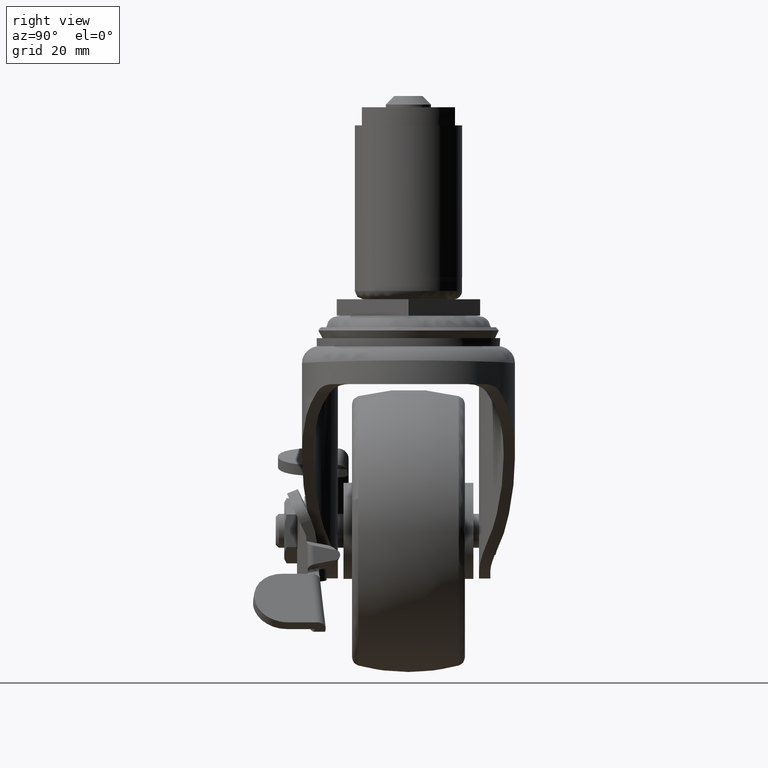
[diagram: clean part render]
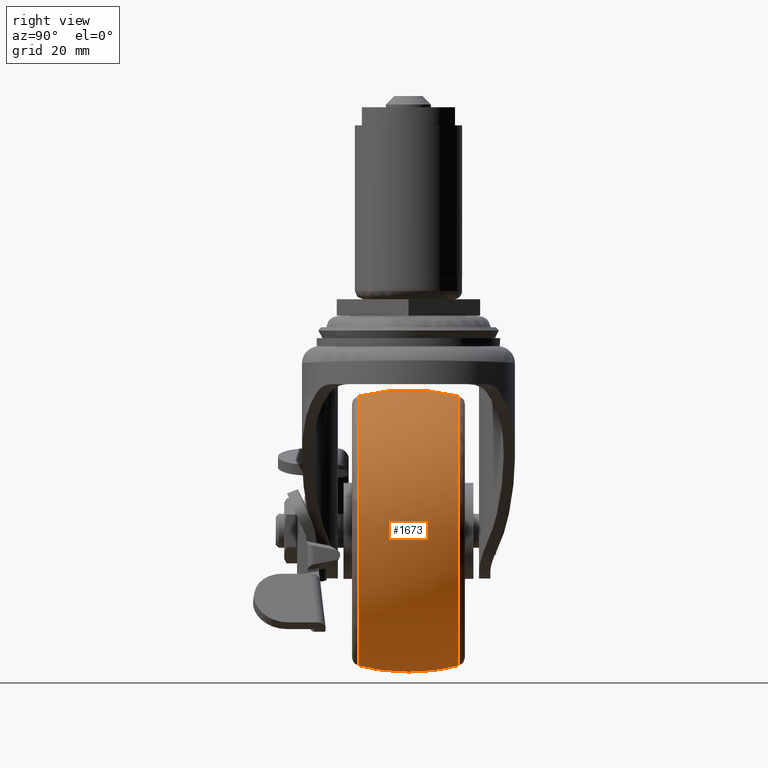
[diagram: same view with one face highlighted and labeled with its STEP entity id]
A machine part, right view. The second image highlights one B-rep face of the part: STEP entity #1673.
In plain terms, the highlighted face is a freeform B-spline surface patch.
Its self-contained STEP definition (entity closure, byte-faithful):
#922=CARTESIAN_POINT('',(-9.399585676374150,-8.880696015885199,-62.837882612725409));
#923=VERTEX_POINT('',#922);
#934=CARTESIAN_POINT('',(4.177901481494555,-8.880696018716346,-35.358828339124777));
#935=VERTEX_POINT('',#934);
#936=CARTESIAN_POINT('',(-9.399585676374150,-8.880696015885199,-62.837882612725409));
#937=CARTESIAN_POINT('',(-8.050520286802502,-8.880696015610686,-62.244985003119830));
#938=CARTESIAN_POINT('',(-6.147953179379456,-8.880696015280980,-61.188268957235877));
#939=CARTESIAN_POINT('',(-3.544275707571238,-8.880696014961051,-59.237053962578713));
#940=CARTESIAN_POINT('',(-1.740728234617294,-8.880696014829189,-57.540412233137388));
#941=CARTESIAN_POINT('',(0.225375365864537,-8.880696014806256,-55.226017047460147));
#942=CARTESIAN_POINT('',(1.777738449670840,-8.880696014926926,-52.864641916692612));
#943=CARTESIAN_POINT('',(3.112648493303074,-8.880696015225183,-50.086988651820512));
#944=CARTESIAN_POINT('',(4.008227709776355,-8.880696015612610,-47.502378921281213));
#945=CARTESIAN_POINT('',(4.688618792101023,-8.880696016201288,-44.407195671817128));
#946=CARTESIAN_POINT('',(5.004737862097834,-8.880696017160545,-40.331742447262378));
#947=CARTESIAN_POINT('',(4.619040402667623,-8.880696018105345,-37.169554296528823));
#948=CARTESIAN_POINT('',(4.177901481494555,-8.880696018716346,-35.358828339124777));
#949=B_SPLINE_CURVE_WITH_KNOTS('',3,(#936,#937,#938,#939,#940,#941,#942,#943,#944,#945,#946,#947,#948),.UNSPECIFIED.,.F.,.U.,(4,1,1,1,1,1,1,1,1,1,4),(0.000000073180111,4.420762647468095,6.501128072192277,9.751709997976352,11.832070746512310,15.602754786469150,18.203153760457180,21.063655903317141,23.794159370547870,27.694847768193689,33.285819942917769),.UNSPECIFIED.);
#950=EDGE_CURVE('',#923,#935,#949,.T.);
#1060=CARTESIAN_POINT('',(-19.0,-8.880696014993557,-17.145805411320168));
#1061=VERTEX_POINT('',#1060);
#1062=CARTESIAN_POINT('',(4.177901481494555,-8.880696018716346,-35.358828339124777));
#1063=CARTESIAN_POINT('',(3.845344327695349,-8.880696018432950,-33.991986553820659));
#1064=CARTESIAN_POINT('',(3.097536393508534,-8.880696017976863,-31.789471687644429));
#1065=CARTESIAN_POINT('',(1.662940428606489,-8.880696017397703,-28.985580008024289));
#1066=CARTESIAN_POINT('',(0.113902293670163,-8.880696016912538,-26.632408212386270));
#1067=CARTESIAN_POINT('',(-1.974369835748819,-8.880696016404640,-24.162297512951898));
#1068=CARTESIAN_POINT('',(-4.788326459854426,-8.880696015901243,-21.703909923820781));
#1069=CARTESIAN_POINT('',(-8.182981683357518,-8.880696015476474,-19.615372736688439));
#1070=CARTESIAN_POINT('',(-11.338198799137579,-8.880696015219456,-18.336766082355361));
#1071=CARTESIAN_POINT('',(-14.945453088614739,-8.880696015034211,-17.396582531532939));
#1072=CARTESIAN_POINT('',(-17.345021164602759,-8.880696014988624,-17.145527409739682));
#1073=CARTESIAN_POINT('',(-19.0,-8.880696014993557,-17.145805411320168));
#1074=B_SPLINE_CURVE_WITH_KNOTS('',3,(#1062,#1063,#1064,#1065,#1066,#1067,#1068,#1069,#1070,#1071,#1072,#1073),.UNSPECIFIED.,.F.,.U.,(4,1,1,1,1,1,1,1,1,4),(0.000000014700824,4.220137284017593,6.950854220785672,9.433312255357116,12.660509163594300,16.632391598677810,20.604293755891021,24.576236339808428,26.810459106600430,31.775333050948131),.UNSPECIFIED.);
#1075=EDGE_CURVE('',#935,#1061,#1074,.T.);
#1077=CARTESIAN_POINT('',(-42.695067302989600,-8.880696014956291,-38.246066195159052));
#1078=VERTEX_POINT('',#1077);
#1095=CARTESIAN_POINT('',(-19.0,-8.880696014925480,-64.855036588697899));
#1096=VERTEX_POINT('',#1095);
#1097=CARTESIAN_POINT('',(-42.695067302989600,-8.880696014956291,-38.246066195159052));
#1098=CARTESIAN_POINT('',(-42.834250292406807,-8.880696014953887,-39.442843111909852));
#1099=CARTESIAN_POINT('',(-42.930696298350163,-8.880696014949171,-41.857523403933079));
#1100=CARTESIAN_POINT('',(-42.515532316658678,-8.880696014942417,-45.564334636890699));
#1101=CARTESIAN_POINT('',(-41.591230538725561,-8.880696014936863,-48.908048298494357));
#1102=CARTESIAN_POINT('',(-40.143534369008719,-8.880696014931644,-52.226953630396437));
#1103=CARTESIAN_POINT('',(-38.006173813695582,-8.880696014927036,-55.665164375084707));
#1104=CARTESIAN_POINT('',(-34.843348022335597,-8.880696014922942,-59.056281945761391));
#1105=CARTESIAN_POINT('',(-31.407026284484601,-8.880696014921670,-61.488370362279881));
#1106=CARTESIAN_POINT('',(-28.446267081974661,-8.880696014920948,-62.959391319769153));
#1107=CARTESIAN_POINT('',(-25.587347733684361,-8.880696014921583,-64.000369736566654));
#1108=CARTESIAN_POINT('',(-22.457354541534428,-8.880696014922837,-64.691719750328204));
#1109=CARTESIAN_POINT('',(-20.100061154865561,-8.880696014924553,-64.855079044142741));
#1110=CARTESIAN_POINT('',(-19.0,-8.880696014925480,-64.855036588697899));
#1111=B_SPLINE_CURVE_WITH_KNOTS('',3,(#1097,#1098,#1099,#1100,#1101,#1102,#1103,#1104,#1105,#1106,#1107,#1108,#1109,#1110),.UNSPECIFIED.,.F.,.U.,(4,1,1,1,1,1,1,1,1,1,1,4),(0.000000115400660,3.614527179604529,7.229065156186223,11.157911331447110,13.986677610748700,18.072691759382408,23.258688927383421,27.816191656388451,30.644958124819588,33.159426560367251,36.931140311160313,40.231327283508847),.UNSPECIFIED.);
#1112=EDGE_CURVE('',#1078,#1096,#1111,.T.);
#1114=CARTESIAN_POINT('',(-19.0,-8.880696014925480,-64.855036588697899));
#1115=CARTESIAN_POINT('',(-17.816389844068041,-8.880696014925412,-64.855107089168911));
#1116=CARTESIAN_POINT('',(-15.706511494687460,-8.880696015000384,-64.697665578951131));
#1117=CARTESIAN_POINT('',(-12.477909165228350,-8.880696015323080,-64.019308210509948));
#1118=CARTESIAN_POINT('',(-10.483081470658560,-8.880696015658545,-63.314293419520183));
#1119=CARTESIAN_POINT('',(-9.399585676374150,-8.880696015885199,-62.837882612725409));
#1120=B_SPLINE_CURVE_WITH_KNOTS('',3,(#1114,#1115,#1116,#1117,#1118,#1119),.UNSPECIFIED.,.F.,.U.,(4,1,1,4),(7.796130E-009,3.550823986617736,6.329709935152115,9.880533913973300),.UNSPECIFIED.);
#1121=EDGE_CURVE('',#1096,#923,#1120,.T.);
#1150=CARTESIAN_POINT('',(4.028807890524782,8.880498015828717,-47.222694862065360));
#1151=VERTEX_POINT('',#1150);
#1152=CARTESIAN_POINT('',(-19.0,8.880498014993361,-17.145805411320168));
#1153=VERTEX_POINT('',#1152);
#1154=CARTESIAN_POINT('',(4.028807890524782,8.880498015828717,-47.222694862065360));
#1155=CARTESIAN_POINT('',(4.415429184012853,8.880498015750169,-45.792374474349216));
#1156=CARTESIAN_POINT('',(4.920844527718553,8.880498015596640,-42.859422886649767));
#1157=CARTESIAN_POINT('',(4.848734490906076,8.880498015376784,-38.223964537749332));
#1158=CARTESIAN_POINT('',(3.953629440113888,8.880498015202003,-34.079671589175312));
#1159=CARTESIAN_POINT('',(2.560079148153377,8.880498015073883,-30.638346210583300));
#1160=CARTESIAN_POINT('',(0.848791043307531,8.880498014973700,-27.605167255168752));
#1161=CARTESIAN_POINT('',(-1.619935727292960,8.880498014887495,-24.451395109404320));
#1162=CARTESIAN_POINT('',(-4.686062389392555,8.880498014839995,-21.780302216920180));
#1163=CARTESIAN_POINT('',(-8.090160421834549,8.880498014828969,-19.684688920520738));
#1164=CARTESIAN_POINT('',(-11.301974294775230,8.880498014847795,-18.321678671210950));
#1165=CARTESIAN_POINT('',(-15.067965212745120,8.880498014901564,-17.371104529968669));
#1166=CARTESIAN_POINT('',(-17.575335900335631,8.880498014955204,-17.145689039405479));
#1167=CARTESIAN_POINT('',(-19.0,8.880498014993361,-17.145805411320168));
#1168=B_SPLINE_CURVE_WITH_KNOTS('',3,(#1154,#1155,#1156,#1157,#1158,#1159,#1160,#1161,#1162,#1163,#1164,#1165,#1166,#1167),.UNSPECIFIED.,.F.,.U.,(4,1,1,1,1,1,1,1,1,1,1,4),(0.000000135211813,4.444939231515441,8.889938503782275,13.847834108057800,17.096070460556799,20.002458776478310,24.276349180269658,29.063296513926851,32.140598579801107,36.243657168590673,39.491936584046996,43.765920952647839),.UNSPECIFIED.);
#1169=EDGE_CURVE('',#1151,#1153,#1168,.T.);
#1271=CARTESIAN_POINT('',(-19.0,8.880498014925280,-64.855036588697899));
#1272=VERTEX_POINT('',#1271);
#1273=CARTESIAN_POINT('',(-19.0,8.880498014925280,-64.855036588697899));
#1274=CARTESIAN_POINT('',(-17.051470912787622,8.880498014925248,-64.855500491670000));
#1275=CARTESIAN_POINT('',(-13.966656748745470,8.880498014944784,-64.474844659347099));
#1276=CARTESIAN_POINT('',(-9.634957325144470,8.880498015017416,-63.056024287485407));
#1277=CARTESIAN_POINT('',(-6.452825995552235,8.880498015102450,-61.399917857913628));
#1278=CARTESIAN_POINT('',(-3.829775032980681,8.880498015200800,-59.474998738599929));
#1279=CARTESIAN_POINT('',(-1.619428593763824,8.880498015305546,-57.435075347149180));
#1280=CARTESIAN_POINT('',(0.421085727138273,8.880498015430140,-55.001845304213418));
#1281=CARTESIAN_POINT('',(2.547490282632721,8.880498015607884,-51.531811966366398));
#1282=CARTESIAN_POINT('',(3.584401385352962,8.880498015744413,-48.868704835660168));
#1283=CARTESIAN_POINT('',(4.028807890524782,8.880498015828717,-47.222694862065360));
#1284=B_SPLINE_CURVE_WITH_KNOTS('',3,(#1273,#1274,#1275,#1276,#1277,#1278,#1279,#1280,#1281,#1282,#1283),.UNSPECIFIED.,.F.,.U.,(4,1,1,1,1,1,1,1,4),(0.000000021093982,5.845449213596528,9.255314362946795,13.639439284981361,16.562117867294269,18.997717575871832,22.651157267765250,26.061021552240909,31.175793207407690),.UNSPECIFIED.);
#1285=EDGE_CURVE('',#1272,#1151,#1284,.T.);
#1287=CARTESIAN_POINT('',(-42.695067302989600,8.880498014956093,-38.246066195159059));
#1288=VERTEX_POINT('',#1287);
#1289=CARTESIAN_POINT('',(-42.695067302989600,8.880498014956093,-38.246066195159059));
#1290=CARTESIAN_POINT('',(-42.882835570000509,8.880498014952806,-39.859113238119413));
#1291=CARTESIAN_POINT('',(-42.918214304197988,8.880498014947820,-42.491739166369449));
#1292=CARTESIAN_POINT('',(-42.357283795356878,8.880498014941210,-46.175880209122013));
#1293=CARTESIAN_POINT('',(-41.580561832407582,8.880498014936624,-48.848319197300100));
#1294=CARTESIAN_POINT('',(-40.471216393493982,8.880498014932698,-51.510213304888062));
#1295=CARTESIAN_POINT('',(-38.814632235724737,8.880498014928222,-54.494421586783382));
#1296=CARTESIAN_POINT('',(-36.502226667549813,8.880498014924807,-57.364879405411543));
#1297=CARTESIAN_POINT('',(-33.689777371326322,8.880498014922285,-59.887968299817793));
#1298=CARTESIAN_POINT('',(-30.907683409304990,8.880498014921091,-61.775971655267597));
#1299=CARTESIAN_POINT('',(-27.824968545432998,8.880498014920869,-63.244855555360523));
#1300=CARTESIAN_POINT('',(-23.871537690040729,8.880498014921813,-64.495401055767658));
#1301=CARTESIAN_POINT('',(-20.938279333422319,8.880498014923653,-64.855588174972553));
#1302=CARTESIAN_POINT('',(-19.0,8.880498014925280,-64.855036588697899));
#1303=B_SPLINE_CURVE_WITH_KNOTS('',3,(#1289,#1290,#1291,#1292,#1293,#1294,#1295,#1296,#1297,#1298,#1299,#1300,#1301,#1302),.UNSPECIFIED.,.F.,.U.,(4,1,1,1,1,1,1,1,1,1,1,4),(0.000000115391792,4.871752037729792,7.857665647260944,11.157911331440960,13.200910963733349,16.501169594288520,21.372892539193941,24.201647825726031,27.816191656388430,31.430729005177430,34.416665240536851,40.231327283508833),.UNSPECIFIED.);
#1304=EDGE_CURVE('',#1288,#1272,#1303,.T.);
#1593=CARTESIAN_POINT('',(-42.449538400252507,-9.774577091402712,-38.274607477388713));
#1594=CARTESIAN_POINT('',(-43.832791040827104,-4.986537296419714,-38.113815879340628));
#1595=CARTESIAN_POINT('',(-43.832791040827097,-0.000099000000085,-38.113815879340628));
#1596=CARTESIAN_POINT('',(-43.832791040827104,4.986339296419542,-38.113815879340628));
#1597=CARTESIAN_POINT('',(-42.449538400252507,9.774379091402535,-38.274607477388713));
#1598=CARTESIAN_POINT('',(-42.607433374786162,-9.774577091402710,-39.632941141016197));
#1599=CARTESIAN_POINT('',(-44.000000000000007,-4.986537296419713,-39.552275581908567));
#1600=CARTESIAN_POINT('',(-44.0,-0.000099000000085,-39.552275581908560));
#1601=CARTESIAN_POINT('',(-44.000000000000007,4.986339296419541,-39.552275581908560));
#1602=CARTESIAN_POINT('',(-42.607433374786147,9.774379091402532,-39.632941141016190));
#1603=CARTESIAN_POINT('',(-42.607433374786162,-9.774577091402710,-41.000421000000102));
#1604=CARTESIAN_POINT('',(-44.0,-4.986537296419714,-41.000421000000102));
#1605=CARTESIAN_POINT('',(-44.0,-0.000099000000085,-41.000421000000102));
#1606=CARTESIAN_POINT('',(-44.0,4.986339296419540,-41.000421000000102));
#1607=CARTESIAN_POINT('',(-42.607433374786154,9.774379091402533,-41.000421000000102));
#1608=CARTESIAN_POINT('',(-42.607433374786162,-9.774577091402705,-64.607854374786257));
#1609=CARTESIAN_POINT('',(-44.0,-4.986537296419712,-66.000421000000102));
#1610=CARTESIAN_POINT('',(-44.000000000000014,-0.000099000000085,-66.000421000000102));
#1611=CARTESIAN_POINT('',(-44.000000000000007,4.986339296419541,-66.000421000000117));
#1612=CARTESIAN_POINT('',(-42.607433374786154,9.774379091402535,-64.607854374786271));
#1613=CARTESIAN_POINT('',(-19.000000000000007,-9.774577091402710,-64.607854374786257));
#1614=CARTESIAN_POINT('',(-19.000000000000004,-4.986537296419714,-66.000421000000102));
#1615=CARTESIAN_POINT('',(-19.0,-0.000099000000085,-66.000421000000102));
#1616=CARTESIAN_POINT('',(-19.000000000000004,4.986339296419540,-66.000421000000102));
#1617=CARTESIAN_POINT('',(-19.000000000000007,9.774379091402533,-64.607854374786257));
#1618=CARTESIAN_POINT('',(4.607433374786153,-9.774577091402705,-64.607854374786257));
#1619=CARTESIAN_POINT('',(6.000000000000001,-4.986537296419712,-66.000421000000102));
#1620=CARTESIAN_POINT('',(6.000000000000003,-0.000099000000085,-66.000421000000102));
#1621=CARTESIAN_POINT('',(6.000000000000004,4.986339296419541,-66.000421000000117));
#1622=CARTESIAN_POINT('',(4.607433374786155,9.774379091402535,-64.607854374786271));
#1623=CARTESIAN_POINT('',(4.607433374786154,-9.774577091402710,-41.000421000000102));
#1624=CARTESIAN_POINT('',(6.000000000000002,-4.986537296419714,-41.000421000000102));
#1625=CARTESIAN_POINT('',(6.000000000000002,-0.000099000000085,-41.000421000000102));
#1626=CARTESIAN_POINT('',(6.000000000000002,4.986339296419540,-41.000421000000102));
#1627=CARTESIAN_POINT('',(4.607433374786154,9.774379091402533,-41.000421000000102));
#1628=CARTESIAN_POINT('',(4.607433374786154,-9.774577091402705,-17.392987625213944));
#1629=CARTESIAN_POINT('',(6.000000000000001,-4.986537296419712,-16.000421000000099));
#1630=CARTESIAN_POINT('',(6.000000000000003,-0.000099000000085,-16.000421000000099));
#1631=CARTESIAN_POINT('',(6.000000000000004,4.986339296419541,-16.000421000000102));
#1632=CARTESIAN_POINT('',(4.607433374786153,9.774379091402535,-17.392987625213948));
#1633=CARTESIAN_POINT('',(-19.000000000000007,-9.774577091402710,-17.392987625213955));
#1634=CARTESIAN_POINT('',(-19.000000000000004,-4.986537296419714,-16.000421000000095));
#1635=CARTESIAN_POINT('',(-19.0,-0.000099000000085,-16.000421000000099));
#1636=CARTESIAN_POINT('',(-19.000000000000004,4.986339296419540,-16.000421000000106));
#1637=CARTESIAN_POINT('',(-19.000000000000007,9.774379091402533,-17.392987625213955));
#1645=(BOUNDED_SURFACE()B_SPLINE_SURFACE(2,2,((#1593,#1598,#1603,#1608,#1613,#1618,#1623,#1628,#1633),(#1594,#1599,#1604,#1609,#1614,#1619,#1624,#1629,#1634),(#1595,#1600,#1605,#1610,#1615,#1620,#1625,#1630,#1635),(#1596,#1601,#1606,#1611,#1616,#1621,#1626,#1631,#1636),(#1597,#1602,#1607,#1612,#1617,#1622,#1627,#1632,#1637)),.UNSPECIFIED.,.F.,.F.,.U.)B_SPLINE_SURFACE_WITH_KNOTS((3,2,3),(3,2,2,2,3),(0.0,10.236363568301019,20.472727136602050),(0.0,3.313707807691297,44.735064045000797,86.156420282310307,127.577776519619800),.UNSPECIFIED.)GEOMETRIC_REPRESENTATION_ITEM()RATIONAL_B_SPLINE_SURFACE(((0.890190336557089,0.908500875787685,0.930299135910304,0.657820827534162,0.930299135910304,0.657820827534162,0.930299135910304,0.657820827534162,0.930299135910304),(0.913709484435960,0.932503794678462,0.954877972649515,0.675200689666135,0.954877972649515,0.675200689666135,0.954877972649515,0.675200689666135,0.954877972649515),(0.956886126402807,0.976568547383107,1.0,0.707106781186548,1.0,0.707106781186548,1.0,0.707106781186548,1.0),(0.913709484435960,0.932503794678462,0.954877972649515,0.675200689666134,0.954877972649515,0.675200689666134,0.954877972649515,0.675200689666134,0.954877972649515),(0.890190336557089,0.908500875787685,0.930299135910304,0.657820827534161,0.930299135910304,0.657820827534161,0.930299135910304,0.657820827534161,0.930299135910304)))REPRESENTATION_ITEM('')SURFACE());
#1646=ORIENTED_EDGE('',*,*,#1112,.F.);
#1647=CARTESIAN_POINT('',(-42.695067302989600,-8.880696014956291,-38.246066195159052));
#1648=CARTESIAN_POINT('',(-43.190225509398203,-6.980896561924840,-38.188508165568152));
#1649=CARTESIAN_POINT('',(-43.845622687019507,-3.189610933222359,-38.112323686233736));
#1650=CARTESIAN_POINT('',(-43.893472858400422,2.815301614065949,-38.106761501169352));
#1651=CARTESIAN_POINT('',(-43.237453201817509,6.799774690958996,-38.183018338513662));
#1652=CARTESIAN_POINT('',(-42.695067302989600,8.880498014956093,-38.246066195159059));
#1653=B_SPLINE_CURVE_WITH_KNOTS('',3,(#1647,#1648,#1649,#1650,#1651,#1652),.UNSPECIFIED.,.F.,.U.,(4,1,1,4),(6.269513E-009,5.892325451220925,11.504057427628471,17.957560992191851),.UNSPECIFIED.);
#1654=EDGE_CURVE('',#1078,#1288,#1653,.T.);
#1655=ORIENTED_EDGE('',*,*,#1654,.T.);
#1656=ORIENTED_EDGE('',*,*,#1304,.T.);
#1657=ORIENTED_EDGE('',*,*,#1285,.T.);
#1658=ORIENTED_EDGE('',*,*,#1169,.T.);
#1659=CARTESIAN_POINT('',(-19.0,-8.880696014993557,-17.145805411320168));
#1660=CARTESIAN_POINT('',(-18.999999999999972,-6.619049687639701,-16.552165534402729));
#1661=CARTESIAN_POINT('',(-19.000000000000028,-2.997749571979461,-15.982040512764961));
#1662=CARTESIAN_POINT('',(-18.999999999999972,2.997549420232276,-15.982007859994701));
#1663=CARTESIAN_POINT('',(-19.000000000000071,6.618852827166909,-16.552181266934859));
#1664=CARTESIAN_POINT('',(-19.0,8.880498014993361,-17.145805411320168));
#1665=B_SPLINE_CURVE_WITH_KNOTS('',3,(#1659,#1660,#1661,#1662,#1663,#1664),.UNSPECIFIED.,.F.,.U.,(4,1,1,4),(6.268039E-009,7.014683411136376,10.942877587400620,17.957560992268920),.UNSPECIFIED.);
#1666=EDGE_CURVE('',#1061,#1153,#1665,.T.);
#1667=ORIENTED_EDGE('',*,*,#1666,.F.);
#1668=ORIENTED_EDGE('',*,*,#1075,.F.);
#1669=ORIENTED_EDGE('',*,*,#950,.F.);
#1670=ORIENTED_EDGE('',*,*,#1121,.F.);
#1671=EDGE_LOOP('',(#1646,#1655,#1656,#1657,#1658,#1667,#1668,#1669,#1670));
#1672=FACE_OUTER_BOUND('',#1671,.T.);
#1673=ADVANCED_FACE('',(#1672),#1645,.T.);